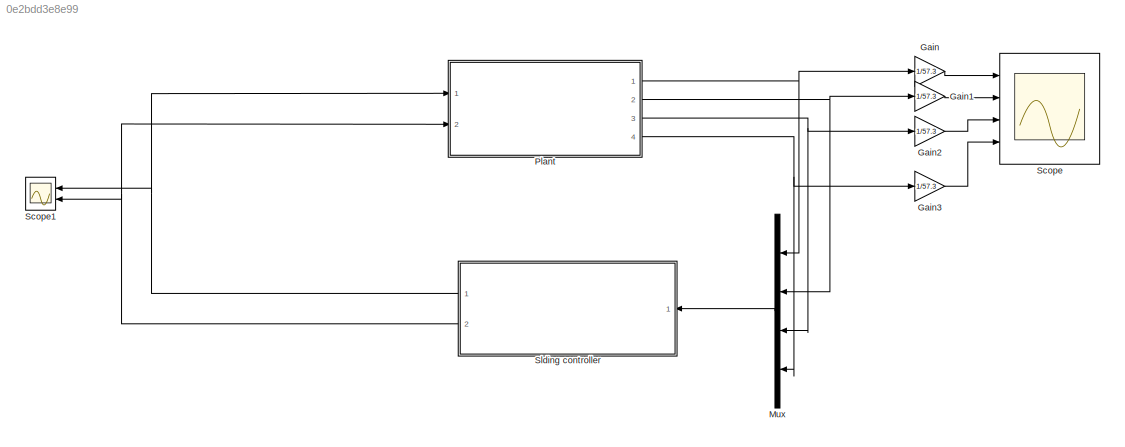
MODEL slx_0e2bdd3e8e99
KIND model
CONFIG AbsTol = auto
CONFIG EnableMultiTasking = off
CONFIG FixedStep = auto
CONFIG MaxStep = auto
CONFIG MinStep = auto
CONFIG RelTol = 1e-3
CONFIG SampleTimeConstraint = Unconstrained
CONFIG SolverName = VariableStepAuto
CONFIG StartTime = 0.0
CONFIG StopTime = 50.0
BLOCK [Gain] Gain
  Gain = 1/57.3
BLOCK [Gain] Gain1
  Gain = 1/57.3
BLOCK [Gain] Gain2
  Gain = 1/57.3
BLOCK [Gain] Gain3
  Gain = 1/57.3
BLOCK [Mux] Mux
  DisplayOption = bar
  Ports = [4, 1]
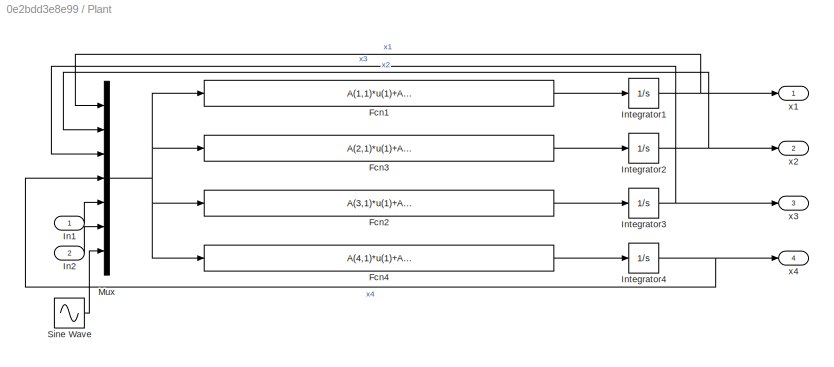
BLOCK [SubSystem] Plant
  Ports = [2, 4]
  RequestExecContextInheritance = off
BLOCK [Fcn] Plant/Fcn1
  Expr = A(1,1)*u(1)+A(1,2)*u(2)+A(1,3)*u(3)+A(1,4)*u(4)+B(1,1)*u(5)+B(1,2)*u(6)
BLOCK [Fcn] Plant/Fcn2
  Expr = A(3,1)*u(1)+A(3,2)*u(2)+A(3,3)*u(3)+A(3,4)*u(4)+B(3,1)*u(5)+B(3,2)*u(6)+u(7)
BLOCK [Fcn] Plant/Fcn3
  Expr = A(2,1)*u(1)+A(2,2)*u(2)+A(2,3)*u(3)+A(2,4)*u(4)+B(2,1)*u(5)+B(2,2)*u(6)+u(7)
BLOCK [Fcn] Plant/Fcn4
  Expr = A(4,1)*u(1)+A(4,2)*u(2)+A(4,3)*u(3)+A(4,4)*u(4)+B(4,1)*u(5)+B(4,2)*u(6)
BLOCK [Inport] Plant/In1
BLOCK [Inport] Plant/In2
  Port = 2
BLOCK [Integrator] Plant/Integrator1
  InitialCondition = 1
  Ports = [1, 1]
BLOCK [Integrator] Plant/Integrator2
  Ports = [1, 1]
BLOCK [Integrator] Plant/Integrator3
  InitialCondition = 1
  Ports = [1, 1]
BLOCK [Integrator] Plant/Integrator4
  Ports = [1, 1]
BLOCK [Mux] Plant/Mux
  DisplayOption = bar
  Inputs = 7
  Ports = [7, 1]
BLOCK [Sin] Plant/Sine Wave
  Amplitude = 0.4
  Ports = [0, 1]
  SampleTime = 0
BLOCK [Outport] Plant/x1
  VectorParamsAs1DForOutWhenUnconnected = off
BLOCK [Outport] Plant/x2
  Port = 2
  VectorParamsAs1DForOutWhenUnconnected = off
BLOCK [Outport] Plant/x3
  Port = 3
  VectorParamsAs1DForOutWhenUnconnected = off
BLOCK [Outport] Plant/x4
  Port = 4
  VectorParamsAs1DForOutWhenUnconnected = off
BLOCK [Scope] Scope
  Floating = off
  NumInputPorts = 4
  Ports = [4]
  ScopeSpecificationString = Simulink.scopes.TimeScopeBlockCfg('CurrentConfiguration', extmgr.ConfigurationSet(extmgr.Configuration('Core','General UI',true),extmgr.Configuration('Core','Source UI',true),extmgr.Configuration('Sources','WiredSimulink',true),extmgr.Configuration('Visuals','Time Domain',true,'SerializedDisplays',{struct('MinYLimReal','-5.88219','MaxYLimReal','21.2755','YLabelReal','','MinYLimMag','0.00000','MaxY...<+3397ch>
BLOCK [Scope] Scope1
  Floating = off
  NumInputPorts = 2
  Ports = [2]
  ScopeSpecificationString = Simulink.scopes.TimeScopeBlockCfg('CurrentConfiguration', extmgr.ConfigurationSet(extmgr.Configuration('Core','General UI',true),extmgr.Configuration('Core','Source UI',true),extmgr.Configuration('Sources','WiredSimulink',true,'DataLoggingVariableName','ScopeData1'),extmgr.Configuration('Visuals','Time Domain',true,'SerializedDisplays',{struct('MinYLimReal','-8.27393','MaxYLimReal','0.80437','YLab...<+2047ch>
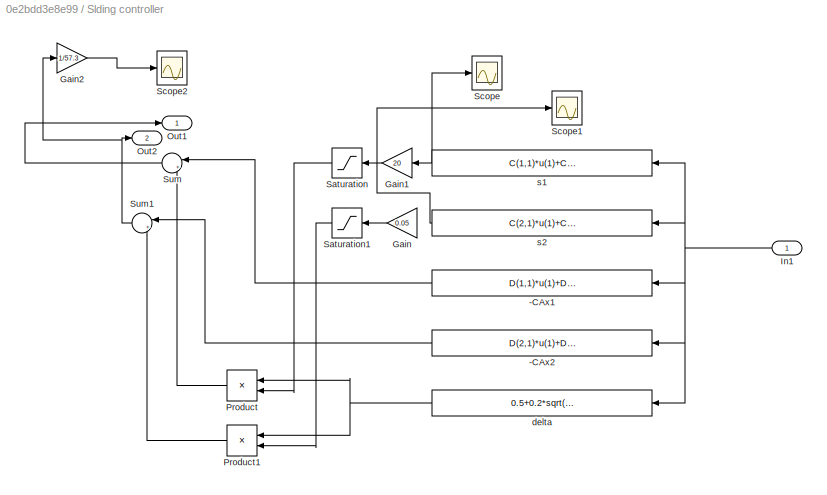
BLOCK [SubSystem] Slding controller
  Ports = [1, 2]
  RequestExecContextInheritance = off
BLOCK [Fcn] Slding controller/-CAx1
  Expr = D(1,1)*u(1)+D(1,2)*u(2)+D(1,3)*u(3)+D(1,4)*u(4)
BLOCK [Fcn] Slding controller/-CAx2
  Expr = D(2,1)*u(1)+D(2,2)*u(2)+D(2,3)*u(3)+D(2,4)*u(4)
BLOCK [Gain] Slding controller/Gain
  Gain = 0.05
BLOCK [Gain] Slding controller/Gain1
  Gain = 20
BLOCK [Gain] Slding controller/Gain2
  Gain = 1/57.3
BLOCK [Inport] Slding controller/In1
BLOCK [Outport] Slding controller/Out1
BLOCK [Outport] Slding controller/Out2
  Port = 2
BLOCK [Product] Slding controller/Product
  Ports = [2, 1]
BLOCK [Product] Slding controller/Product1
  Ports = [2, 1]
BLOCK [Saturate] Slding controller/Saturation
BLOCK [Saturate] Slding controller/Saturation1
BLOCK [Scope] Slding controller/Scope
  Floating = off
  NumInputPorts = 1
  Ports = [1]
  ScopeSpecificationString = Simulink.scopes.TimeScopeBlockCfg('CurrentConfiguration', extmgr.ConfigurationSet(extmgr.Configuration('Core','General UI',true),extmgr.Configuration('Core','Source UI',true),extmgr.Configuration('Sources','WiredSimulink',true,'DataLoggingVariableName','ScopeData1'),extmgr.Configuration('Visuals','Time Domain',true,'SerializedDisplays',{struct('MinYLimReal','-2.50244','MaxYLimReal','0.27814','YLab...<+1361ch>
BLOCK [Scope] Slding controller/Scope1
  Floating = off
  NumInputPorts = 1
  Ports = [1]
  ScopeSpecificationString = Simulink.scopes.TimeScopeBlockCfg('CurrentConfiguration', extmgr.ConfigurationSet(extmgr.Configuration('Core','General UI',true),extmgr.Configuration('Core','Source UI',true),extmgr.Configuration('Sources','WiredSimulink',true,'DataLoggingVariableName','ScopeData2'),extmgr.Configuration('Visuals','Time Domain',true,'SerializedDisplays',{struct('MinYLimReal','-3193137.91276','MaxYLimReal','-1480403...<+1409ch>
BLOCK [Scope] Slding controller/Scope2
  Floating = off
  NumInputPorts = 1
  Ports = [1]
  ScopeSpecificationString = Simulink.scopes.TimeScopeBlockCfg('CurrentConfiguration', extmgr.ConfigurationSet(extmgr.Configuration('Core','General UI',true),extmgr.Configuration('Core','Source UI',true),extmgr.Configuration('Sources','WiredSimulink',true,'DataLoggingVariableName','ScopeData3'),extmgr.Configuration('Visuals','Time Domain',true,'SerializedDisplays',{struct('MinYLimReal','-1299946.96363','MaxYLimReal','831476.5...<+1408ch>
BLOCK [Sum] Slding controller/Sum
  Inputs = |+-
  Ports = [2, 1]
BLOCK [Sum] Slding controller/Sum1
  Inputs = |+-
  Ports = [2, 1]
BLOCK [Fcn] Slding controller/delta
  Expr = 0.5+0.2*sqrt(u(1)^2+u(2)^2+u(3)^2+u(4)^2)
BLOCK [Fcn] Slding controller/s1
  Expr = C(1,1)*u(1)+C(1,2)*u(2)+C(1,3)*u(3)+C(1,4)*u(4)
BLOCK [Fcn] Slding controller/s2
  Expr = C(2,1)*u(1)+C(2,2)*u(2)+C(2,3)*u(3)+C(2,4)*u(4)
LINE Gain1:1 -> Scope:2
LINE Gain2:1 -> Scope:3
LINE Gain3:1 -> Scope:4
LINE Gain:1 -> Scope:1
LINE Mux:1 -> Slding controller:1
LINE Plant/Fcn1:1 -> Plant/Integrator1:1
LINE Plant/Fcn2:1 -> Plant/Integrator3:1
LINE Plant/Fcn3:1 -> Plant/Integrator2:1
LINE Plant/Fcn4:1 -> Plant/Integrator4:1
LINE Plant/In1:1 -> Plant/Mux:5
LINE Plant/In2:1 -> Plant/Mux:6
NET Plant/Integrator1:1 -> Plant/Mux:1, Plant/x1:1
NET Plant/Integrator2:1 -> Plant/Mux:2, Plant/x2:1
NET Plant/Integrator3:1 -> Plant/Mux:3, Plant/x3:1
NET Plant/Integrator4:1 -> Plant/Mux:4, Plant/x4:1
NET Plant/Mux:1 -> Plant/Fcn1:1, Plant/Fcn2:1, Plant/Fcn3:1, Plant/Fcn4:1
LINE Plant/Sine Wave:1 -> Plant/Mux:7
NET Plant:1 -> Gain:1, Mux:1
NET Plant:2 -> Gain1:1, Mux:2
NET Plant:3 -> Gain2:1, Mux:3
NET Plant:4 -> Gain3:1, Mux:4
LINE Slding controller/-CAx1:1 -> Slding controller/Sum:1
LINE Slding controller/-CAx2:1 -> Slding controller/Sum1:1
LINE Slding controller/Gain1:1 -> Slding controller/Saturation:1
LINE Slding controller/Gain2:1 -> Slding controller/Scope2:1
LINE Slding controller/Gain:1 -> Slding controller/Saturation1:1
NET Slding controller/In1:1 -> Slding controller/-CAx1:1, Slding controller/-CAx2:1, Slding controller/delta:1, Slding controller/s1:1, Slding controller/s2:1
LINE Slding controller/Product1:1 -> Slding controller/Sum1:2
LINE Slding controller/Product:1 -> Slding controller/Sum:2
LINE Slding controller/Saturation1:1 -> Slding controller/Product1:2
LINE Slding controller/Saturation:1 -> Slding controller/Product:2
NET Slding controller/Sum1:1 -> Slding controller/Gain2:1, Slding controller/Out2:1
LINE Slding controller/Sum:1 -> Slding controller/Out1:1
NET Slding controller/delta:1 -> Slding controller/Product1:1, Slding controller/Product:1
NET Slding controller/s1:1 -> Slding controller/Gain1:1, Slding controller/Scope:1
LINE Slding controller/s2:1 -> Slding controller/Scope1:1
NET Slding controller:1 -> Plant:1, Scope1:1
NET Slding controller:2 -> Plant:2, Scope1:2
note: NET lines group one-source signal fan-out (src -> all destinations, sorted); 1:1 wires keep LINE
